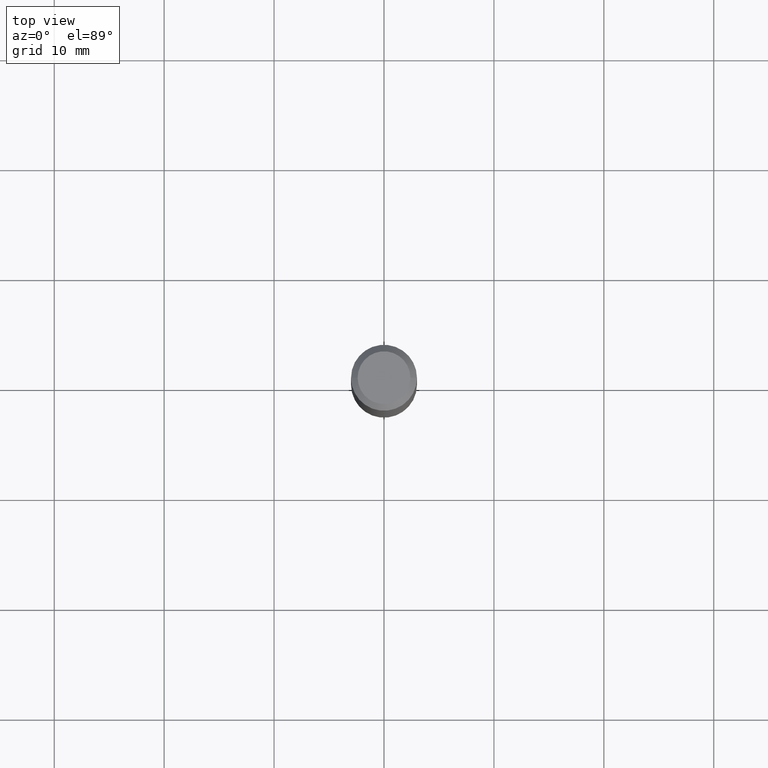
[diagram: clean part render]
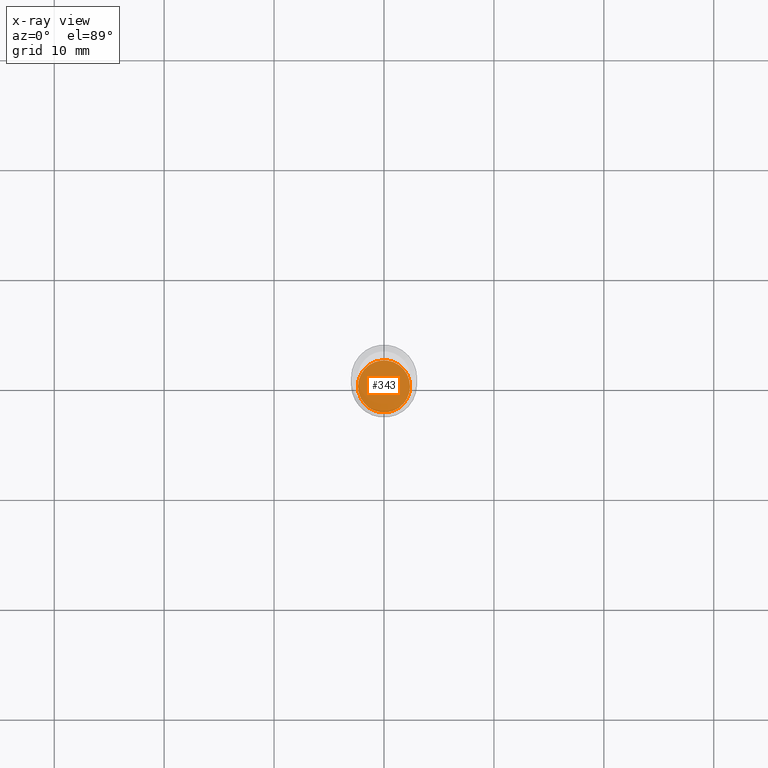
[diagram: x-ray — body ghosted, one internal face saturated and labeled with its STEP entity id]
A machine part, top view, then the same camera in x-ray: the body is ghosted and one INTERNAL B-rep face — a face not visible from any outside direction — is saturated and labeled: STEP entity #343.
In plain terms, the highlighted planar face has unit normal (-0, 0, 1).
Its self-contained STEP definition (entity closure, byte-faithful):
#18 = VERTEX_POINT ( 'NONE', #106 ) ;
#88 = DIRECTION ( 'NONE',  ( -2.445468806185136597E-29, 3.491481338843145583E-15, 1.000000000000000000 ) ) ;
#106 = CARTESIAN_POINT ( 'NONE',  ( -0.09324999999999998568, -5.657842376374531768E-15, -1.810999999999999943 ) ) ;
#134 = DIRECTION ( 'NONE',  ( 1.000000000000000000, -6.982962677686265922E-15, 4.876176775795935793E-29 ) ) ;
#155 = CARTESIAN_POINT ( 'NONE',  ( 4.428744008001282238E-29, -6.323072704644935995E-15, -1.810999999999999943 ) ) ;
#179 = CIRCLE ( 'NONE', #221, 0.09324999999999998568 ) ;
#217 = VERTEX_POINT ( 'NONE', #482 ) ;
#219 = EDGE_CURVE ( 'NONE', #217, #18, #461, .T. ) ;
#221 = AXIS2_PLACEMENT_3D ( 'NONE', #348, #88, #346 ) ;
#234 = FACE_OUTER_BOUND ( 'NONE', #366, .T. ) ;
#242 = PLANE ( 'NONE',  #427 ) ;
#289 = DIRECTION ( 'NONE',  ( -2.438088387897960049E-29, 3.491481338843145188E-15, 1.000000000000000000 ) ) ;
#309 = AXIS2_PLACEMENT_3D ( 'NONE', #155, #310, #453 ) ;
#310 = DIRECTION ( 'NONE',  ( -2.445468806185136597E-29, 3.491481338843145583E-15, 1.000000000000000000 ) ) ;
#321 = CARTESIAN_POINT ( 'NONE',  ( 4.428744008001282238E-29, -6.323072704644935995E-15, -1.810999999999999943 ) ) ;
#343 = ADVANCED_FACE ( 'NONE', ( #234 ), #242, .F. ) ;
#346 = DIRECTION ( 'NONE',  ( 1.000000000000000000, -6.982962677686269077E-15, 0.000000000000000000 ) ) ;
#348 = CARTESIAN_POINT ( 'NONE',  ( 4.428744008001282238E-29, -6.323072704644935995E-15, -1.810999999999999943 ) ) ;
#366 = EDGE_LOOP ( 'NONE', ( #382, #466 ) ) ;
#382 = ORIENTED_EDGE ( 'NONE', *, *, #219, .F. ) ;
#389 = EDGE_CURVE ( 'NONE', #18, #217, #179, .T. ) ;
#427 = AXIS2_PLACEMENT_3D ( 'NONE', #321, #289, #134 ) ;
#453 = DIRECTION ( 'NONE',  ( 1.000000000000000000, -6.982962677686269077E-15, 0.000000000000000000 ) ) ;
#461 = CIRCLE ( 'NONE', #309, 0.09324999999999998568 ) ;
#466 = ORIENTED_EDGE ( 'NONE', *, *, #389, .F. ) ;
#482 = CARTESIAN_POINT ( 'NONE',  ( 0.09324999999999998568, -6.974233974339180492E-15, -1.810999999999999943 ) ) ;